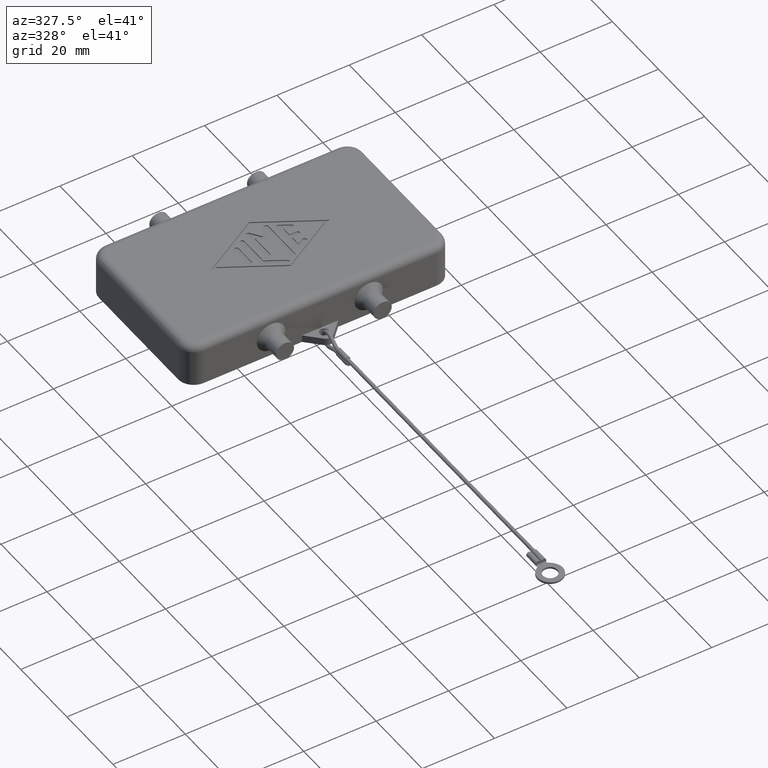
[diagram: clean part render]
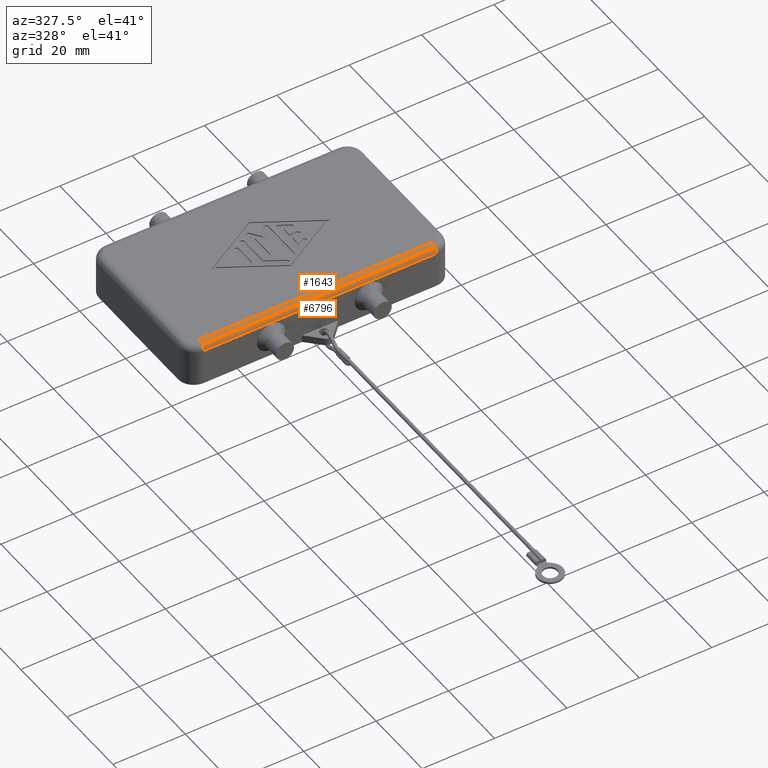
[diagram: same view with one multi-face feature highlighted, each face labeled with its STEP entity id]
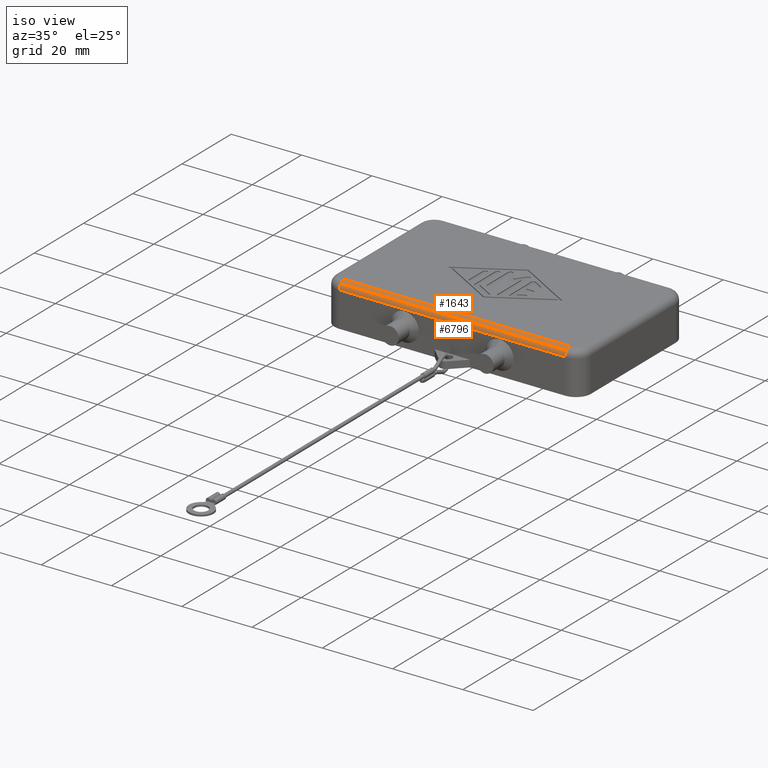
[diagram: same view with one multi-face feature highlighted, each face labeled with its STEP entity id]
A machine part, auxiliary view. The highlighted faces form ONE feature: a constant-radius fillet chain: 2 tangent blend faces with common blend radius 2 mm. The faces share edges in the B-rep.
A second angle (iso view) of the same feature is appended — it is thin or edge-on in the first view.
Their STEP definitions:
[1] entity #6796 (Cylinder):
#1607=CARTESIAN_POINT('',(32.200000000000003,-20.914213562373096,11.414213562373096));
#1608=VERTEX_POINT('',#1607);
#1609=CARTESIAN_POINT('',(-32.200000000000003,-20.914213562373096,11.414213562373096));
#1610=VERTEX_POINT('',#1609);
#1611=CARTESIAN_POINT('',(32.200000000000003,-20.914213562373096,11.414213562373096));
#1612=DIRECTION('',(-1.0,0.0,0.0));
#1613=VECTOR('',#1612,64.400000000000006);
#1614=LINE('',#1611,#1613);
#1615=EDGE_CURVE('',#1608,#1610,#1614,.T.);
#1668=CARTESIAN_POINT('',(-32.200000000000003,-21.500000000000000,10.000000000000002));
#1669=VERTEX_POINT('',#1668);
#6735=CARTESIAN_POINT('',(-32.200000000000003,-19.500000000000000,10.000000000000002));
#6736=DIRECTION('',(-1.0,0.0,0.0));
#6737=DIRECTION('',(0.0,-1.0,0.0));
#6738=AXIS2_PLACEMENT_3D('',#6735,#6736,#6737);
#6739=CIRCLE('',#6738,2.000000000000000);
#6740=EDGE_CURVE('',#1669,#1610,#6739,.T.);
#6772=CARTESIAN_POINT('',(18.250000000000000,-19.500000000000000,10.000000000000002));
#6773=DIRECTION('',(-1.0,0.0,0.0));
#6774=DIRECTION('',(0.0,-0.707106781186548,0.707106781186548));
#6775=AXIS2_PLACEMENT_3D('',#6772,#6773,#6774);
#6776=CYLINDRICAL_SURFACE('',#6775,2.000000000000000);
#6777=ORIENTED_EDGE('',*,*,#1615,.T.);
#6778=ORIENTED_EDGE('',*,*,#6740,.F.);
#6779=CARTESIAN_POINT('',(32.200000000000003,-21.500000000000004,10.000000000000002));
#6780=VERTEX_POINT('',#6779);
#6781=CARTESIAN_POINT('',(-32.200000000000003,-21.500000000000000,10.000000000000002));
#6782=DIRECTION('',(1.0,0.0,0.0));
#6783=VECTOR('',#6782,64.400000000000006);
#6784=LINE('',#6781,#6783);
#6785=EDGE_CURVE('',#1669,#6780,#6784,.T.);
#6786=ORIENTED_EDGE('',*,*,#6785,.T.);
#6787=CARTESIAN_POINT('',(32.200000000000003,-19.500000000000000,10.000000000000002));
#6788=DIRECTION('',(1.0,0.0,0.0));
#6789=DIRECTION('',(0.0,0.0,1.0));
#6790=AXIS2_PLACEMENT_3D('',#6787,#6788,#6789);
#6791=CIRCLE('',#6790,2.000000000000000);
#6792=EDGE_CURVE('',#1608,#6780,#6791,.T.);
#6793=ORIENTED_EDGE('',*,*,#6792,.F.);
#6794=EDGE_LOOP('',(#6777,#6778,#6786,#6793));
#6795=FACE_OUTER_BOUND('',#6794,.T.);
#6796=ADVANCED_FACE('',(#6795),#6776,.T.);
[2] entity #1643 (Cylinder):
#1602=CARTESIAN_POINT('',(18.250000000000000,-19.500000000000000,10.000000000000002));
#1603=DIRECTION('',(-1.0,0.0,0.0));
#1604=DIRECTION('',(0.0,-0.707106781186548,0.707106781186548));
#1605=AXIS2_PLACEMENT_3D('',#1602,#1603,#1604);
#1606=CYLINDRICAL_SURFACE('',#1605,2.000000000000000);
#1607=CARTESIAN_POINT('',(32.200000000000003,-20.914213562373096,11.414213562373096));
#1608=VERTEX_POINT('',#1607);
#1609=CARTESIAN_POINT('',(-32.200000000000003,-20.914213562373096,11.414213562373096));
#1610=VERTEX_POINT('',#1609);
#1611=CARTESIAN_POINT('',(32.200000000000003,-20.914213562373096,11.414213562373096));
#1612=DIRECTION('',(-1.0,0.0,0.0));
#1613=VECTOR('',#1612,64.400000000000006);
#1614=LINE('',#1611,#1613);
#1615=EDGE_CURVE('',#1608,#1610,#1614,.T.);
#1616=ORIENTED_EDGE('',*,*,#1615,.F.);
#1617=CARTESIAN_POINT('',(32.200000000000003,-19.500000000000000,12.000000000000002));
#1618=VERTEX_POINT('',#1617);
#1619=CARTESIAN_POINT('',(32.200000000000003,-19.500000000000000,10.000000000000002));
#1620=DIRECTION('',(1.0,0.0,0.0));
#1621=DIRECTION('',(0.0,0.0,1.0));
#1622=AXIS2_PLACEMENT_3D('',#1619,#1620,#1621);
#1623=CIRCLE('',#1622,2.000000000000000);
#1624=EDGE_CURVE('',#1618,#1608,#1623,.T.);
#1625=ORIENTED_EDGE('',*,*,#1624,.F.);
#1626=CARTESIAN_POINT('',(-32.200000000000003,-19.500000000000000,12.000000000000002));
#1627=VERTEX_POINT('',#1626);
#1628=CARTESIAN_POINT('',(32.200000000000003,-19.500000000000000,12.000000000000002));
#1629=DIRECTION('',(-1.0,0.0,0.0));
#1630=VECTOR('',#1629,64.400000000000006);
#1631=LINE('',#1628,#1630);
#1632=EDGE_CURVE('',#1618,#1627,#1631,.T.);
#1633=ORIENTED_EDGE('',*,*,#1632,.T.);
#1634=CARTESIAN_POINT('',(-32.200000000000003,-19.500000000000000,10.000000000000002));
#1635=DIRECTION('',(-1.0,0.0,0.0));
#1636=DIRECTION('',(0.0,-1.0,0.0));
#1637=AXIS2_PLACEMENT_3D('',#1634,#1635,#1636);
#1638=CIRCLE('',#1637,2.000000000000000);
#1639=EDGE_CURVE('',#1610,#1627,#1638,.T.);
#1640=ORIENTED_EDGE('',*,*,#1639,.F.);
#1641=EDGE_LOOP('',(#1616,#1625,#1633,#1640));
#1642=FACE_OUTER_BOUND('',#1641,.T.);
#1643=ADVANCED_FACE('',(#1642),#1606,.T.);